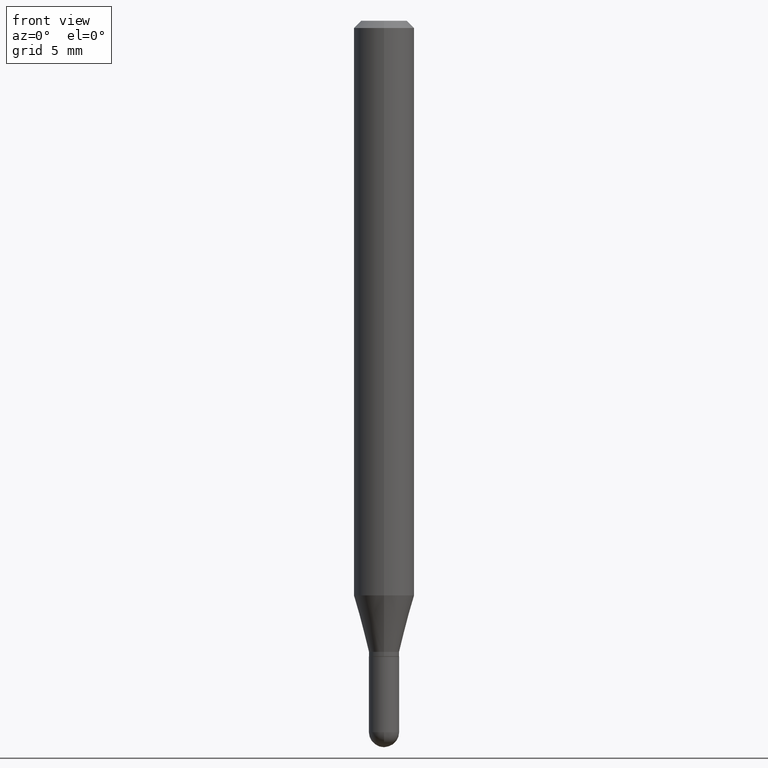
[diagram: clean part render]
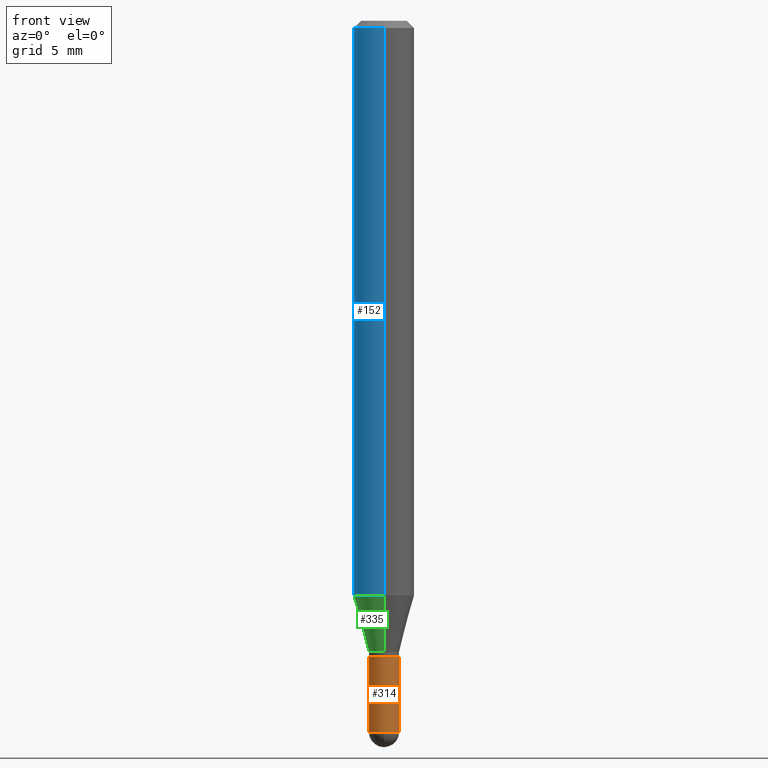
[diagram: same view with three faces highlighted in distinct colors, each labeled with its STEP entity id]
A machine part, front view with three faces highlighted in distinct colors.
Their STEP definitions:

[orange] entity #314 — the highlighted cylindrical surface (edge-blend (fillet) strip) has radius 0.7937 mm, axis along (-0, 0, 1).
#5 = EDGE_LOOP ( 'NONE', ( #219, #83, #27, #449, #45 ) ) ;
#15 = CARTESIAN_POINT ( 'NONE',  ( -2.220446049249960559E-16, -0.03125000000000523193, -1.468749999999999556 ) ) ;
#27 = ORIENTED_EDGE ( 'NONE', *, *, #450, .T. ) ;
#36 = CYLINDRICAL_SURFACE ( 'NONE', #216, 0.03124999999999956285 ) ;
#38 = CARTESIAN_POINT ( 'NONE',  ( -0.03124999999999956285, -4.634169502238430896E-15, -1.468749999999999556 ) ) ;
#44 = FACE_OUTER_BOUND ( 'NONE', #5, .T. ) ;
#45 = ORIENTED_EDGE ( 'NONE', *, *, #408, .F. ) ;
#55 = EDGE_CURVE ( 'NONE', #418, #89, #67, .T. ) ;
#58 = AXIS2_PLACEMENT_3D ( 'NONE', #118, #109, #267 ) ;
#67 = LINE ( 'NONE', #369, #302 ) ;
#73 = CIRCLE ( 'NONE', #432, 0.03124999999999956285 ) ;
#83 = ORIENTED_EDGE ( 'NONE', *, *, #263, .T. ) ;
#85 = CARTESIAN_POINT ( 'NONE',  ( -0.03124999999999956285, 2.220446049250282019E-16, -1.537167215704636512E-30 ) ) ;
#89 = VERTEX_POINT ( 'NONE', #500 ) ;
#109 = DIRECTION ( 'NONE',  ( -2.445468806185136597E-29, 3.491481338843145583E-15, 1.000000000000000000 ) ) ;
#118 = CARTESIAN_POINT ( 'NONE',  ( 3.591782309084418255E-29, -5.128113216425867498E-15, -1.468749999999999556 ) ) ;
#124 = CIRCLE ( 'NONE', #58, 0.03124999999999956285 ) ;
#129 = LINE ( 'NONE', #85, #151 ) ;
#151 = VECTOR ( 'NONE', #341, 39.37007874015748143 ) ;
#212 = DIRECTION ( 'NONE',  ( 1.000000000000000000, -6.982962677686267499E-15, 0.000000000000000000 ) ) ;
#216 = AXIS2_PLACEMENT_3D ( 'NONE', #265, #348, #506 ) ;
#219 = ORIENTED_EDGE ( 'NONE', *, *, #376, .F. ) ;
#222 = DIRECTION ( 'NONE',  ( -2.445468806185136597E-29, 3.491481338843145583E-15, 1.000000000000000000 ) ) ;
#227 = AXIS2_PLACEMENT_3D ( 'NONE', #304, #222, #379 ) ;
#243 = VERTEX_POINT ( 'NONE', #38 ) ;
#263 = EDGE_CURVE ( 'NONE', #243, #480, #124, .T. ) ;
#265 = CARTESIAN_POINT ( 'NONE',  ( 0.000000000000000000, 0.000000000000000000, 0.000000000000000000 ) ) ;
#267 = DIRECTION ( 'NONE',  ( 1.000000000000000000, -6.982962677686267499E-15, 0.000000000000000000 ) ) ;
#279 = DIRECTION ( 'NONE',  ( -2.445468806185136597E-29, 3.491481338843145583E-15, 1.000000000000000000 ) ) ;
#302 = VECTOR ( 'NONE', #461, 39.37007874015748143 ) ;
#304 = CARTESIAN_POINT ( 'NONE',  ( 3.210900542521084024E-29, -4.584314997901049810E-15, -1.312999999999999945 ) ) ;
#314 = ADVANCED_FACE ( 'NONE', ( #44 ), #36, .T. ) ;
#317 = CARTESIAN_POINT ( 'NONE',  ( 0.03124999999999956285, -5.074431690841150939E-15, -1.468749999999999556 ) ) ;
#341 = DIRECTION ( 'NONE',  ( -2.445468806185136877E-29, 3.491481338843145188E-15, 1.000000000000000000 ) ) ;
#345 = CIRCLE ( 'NONE', #227, 0.03124999999999956285 ) ;
#348 = DIRECTION ( 'NONE',  ( -2.445468806185136597E-29, 3.491481338843145583E-15, 1.000000000000000000 ) ) ;
#364 = CARTESIAN_POINT ( 'NONE',  ( -0.03124999999999956285, -4.634169502238430896E-15, -1.312999999999999945 ) ) ;
#369 = CARTESIAN_POINT ( 'NONE',  ( 0.03124999999999956285, -2.182175836776928025E-16, 1.523805242436208565E-30 ) ) ;
#376 = EDGE_CURVE ( 'NONE', #243, #495, #129, .T. ) ;
#379 = DIRECTION ( 'NONE',  ( 1.000000000000000000, -6.982962677686267499E-15, 0.000000000000000000 ) ) ;
#400 = CARTESIAN_POINT ( 'NONE',  ( 3.591782309084418255E-29, -5.128113216425867498E-15, -1.468749999999999556 ) ) ;
#408 = EDGE_CURVE ( 'NONE', #495, #89, #345, .T. ) ;
#418 = VERTEX_POINT ( 'NONE', #317 ) ;
#432 = AXIS2_PLACEMENT_3D ( 'NONE', #400, #279, #212 ) ;
#449 = ORIENTED_EDGE ( 'NONE', *, *, #55, .T. ) ;
#450 = EDGE_CURVE ( 'NONE', #480, #418, #73, .T. ) ;
#461 = DIRECTION ( 'NONE',  ( -2.445468806185136877E-29, 3.491481338843145188E-15, 1.000000000000000000 ) ) ;
#480 = VERTEX_POINT ( 'NONE', #15 ) ;
#495 = VERTEX_POINT ( 'NONE', #364 ) ;
#500 = CARTESIAN_POINT ( 'NONE',  ( 0.03124999999999956285, -4.802532581578742489E-15, -1.312999999999999945 ) ) ;
#506 = DIRECTION ( 'NONE',  ( 1.000000000000000000, -6.982962677686267499E-15, 4.876176775795935793E-29 ) ) ;

[blue] entity #152 — the highlighted cylindrical surface (edge-blend (fillet) strip) has radius 1.5875 mm, axis along (-0, 0, 1).
#6 = EDGE_CURVE ( 'NONE', #424, #481, #35, .T. ) ;
#8 = ORIENTED_EDGE ( 'NONE', *, *, #6, .T. ) ;
#14 = DIRECTION ( 'NONE',  ( -6.982962677686265922E-15, -1.000000000000000000, 4.370956789862821938E-15 ) ) ;
#17 = CARTESIAN_POINT ( 'NONE',  ( 4.440892098500914096E-16, 0.06249999999999582279, -1.186373412263470595 ) ) ;
#23 = CARTESIAN_POINT ( 'NONE',  ( 0.000000000000000000, 0.000000000000000000, 0.000000000000000000 ) ) ;
#31 = DIRECTION ( 'NONE',  ( -6.982962677686265922E-15, -1.000000000000000000, 3.487252007655688059E-15 ) ) ;
#35 = CIRCLE ( 'NONE', #161, 0.06249999999999999306 ) ;
#92 = CARTESIAN_POINT ( 'NONE',  ( -4.364351673553916201E-16, -0.06250000000000000000, 2.179532504784805037E-16 ) ) ;
#104 = AXIS2_PLACEMENT_3D ( 'NONE', #23, #172, #31 ) ;
#135 = ORIENTED_EDGE ( 'NONE', *, *, #350, .F. ) ;
#152 = ADVANCED_FACE ( 'NONE', ( #371 ), #255, .T. ) ;
#159 = CARTESIAN_POINT ( 'NONE',  ( -4.364351673553627281E-16, -0.06250000000000416334, -1.186373412263470373 ) ) ;
#161 = AXIS2_PLACEMENT_3D ( 'NONE', #402, #245, #14 ) ;
#166 = CARTESIAN_POINT ( 'NONE',  ( 3.672633198552774961E-31, -5.230878011483577990E-17, -0.01500000000000012955 ) ) ;
#172 = DIRECTION ( 'NONE',  ( -2.448422132368495575E-29, 3.487252007655688059E-15, 1.000000000000000000 ) ) ;
#202 = DIRECTION ( 'NONE',  ( -2.448422132368495295E-29, 3.487252007655688059E-15, 1.000000000000000000 ) ) ;
#206 = DIRECTION ( 'NONE',  ( -2.448422132368495575E-29, 3.487252007655688059E-15, 1.000000000000000000 ) ) ;
#242 = CIRCLE ( 'NONE', #446, 0.06250000000000001388 ) ;
#245 = DIRECTION ( 'NONE',  ( -2.448422132368495575E-29, 3.487252007655688059E-15, 1.000000000000000000 ) ) ;
#255 = CYLINDRICAL_SURFACE ( 'NONE', #104, 0.06250000000000000000 ) ;
#271 = CARTESIAN_POINT ( 'NONE',  ( 4.440892098500920012E-16, 0.06249999999999996531, -0.01500000000000034812 ) ) ;
#283 = EDGE_LOOP ( 'NONE', ( #135, #8, #313, #434 ) ) ;
#284 = LINE ( 'NONE', #322, #384 ) ;
#313 = ORIENTED_EDGE ( 'NONE', *, *, #463, .T. ) ;
#322 = CARTESIAN_POINT ( 'NONE',  ( 4.440892098500625669E-16, 0.06250000000000000000, -2.179532504784805037E-16 ) ) ;
#350 = EDGE_CURVE ( 'NONE', #424, #392, #284, .T. ) ;
#357 = CARTESIAN_POINT ( 'NONE',  ( -4.364351673553913736E-16, -0.06250000000000006939, -0.01499999999999991271 ) ) ;
#366 = DIRECTION ( 'NONE',  ( -2.448422132368495295E-29, 3.487252007655688059E-15, 1.000000000000000000 ) ) ;
#370 = EDGE_CURVE ( 'NONE', #392, #474, #242, .T. ) ;
#371 = FACE_OUTER_BOUND ( 'NONE', #283, .T. ) ;
#384 = VECTOR ( 'NONE', #366, 39.37007874015748143 ) ;
#392 = VERTEX_POINT ( 'NONE', #271 ) ;
#397 = LINE ( 'NONE', #92, #502 ) ;
#402 = CARTESIAN_POINT ( 'NONE',  ( 2.904742919839414695E-29, -4.137183063745116506E-15, -1.186373412263470595 ) ) ;
#424 = VERTEX_POINT ( 'NONE', #17 ) ;
#434 = ORIENTED_EDGE ( 'NONE', *, *, #370, .F. ) ;
#437 = DIRECTION ( 'NONE',  ( -6.982962677686265922E-15, -1.000000000000000000, 3.483106191921934765E-15 ) ) ;
#446 = AXIS2_PLACEMENT_3D ( 'NONE', #166, #206, #437 ) ;
#463 = EDGE_CURVE ( 'NONE', #481, #474, #397, .T. ) ;
#474 = VERTEX_POINT ( 'NONE', #357 ) ;
#481 = VERTEX_POINT ( 'NONE', #159 ) ;
#502 = VECTOR ( 'NONE', #202, 39.37007874015748143 ) ;

[green] entity #335 — the highlighted conical surface has half-angle 15 deg.
#6 = EDGE_CURVE ( 'NONE', #424, #481, #35, .T. ) ;
#14 = DIRECTION ( 'NONE',  ( -6.982962677686265922E-15, -1.000000000000000000, 4.370956789862821938E-15 ) ) ;
#17 = CARTESIAN_POINT ( 'NONE',  ( 4.440892098500914096E-16, 0.06249999999999582279, -1.186373412263470595 ) ) ;
#26 = VECTOR ( 'NONE', #444, 39.37007874015748143 ) ;
#35 = CIRCLE ( 'NONE', #161, 0.06249999999999999306 ) ;
#57 = VECTOR ( 'NONE', #451, 39.37007874015748143 ) ;
#62 = CARTESIAN_POINT ( 'NONE',  ( 2.220446049250581294E-16, 0.03124999999999474032, -1.302999999999999714 ) ) ;
#106 = CARTESIAN_POINT ( 'NONE',  ( 3.330669073875748681E-16, 0.03124999999999473685, -1.302999999999999714 ) ) ;
#120 = DIRECTION ( 'NONE',  ( -2.448422132368495575E-29, 3.487252007655688059E-15, 1.000000000000000000 ) ) ;
#144 = EDGE_CURVE ( 'NONE', #149, #424, #412, .T. ) ;
#149 = VERTEX_POINT ( 'NONE', #106 ) ;
#150 = DIRECTION ( 'NONE',  ( -2.448422132368495575E-29, 3.487252007655688059E-15, 1.000000000000000000 ) ) ;
#159 = CARTESIAN_POINT ( 'NONE',  ( -4.364351673553627281E-16, -0.06250000000000416334, -1.186373412263470373 ) ) ;
#161 = AXIS2_PLACEMENT_3D ( 'NONE', #402, #245, #14 ) ;
#162 = ORIENTED_EDGE ( 'NONE', *, *, #508, .T. ) ;
#174 = AXIS2_PLACEMENT_3D ( 'NONE', #510, #150, #484 ) ;
#190 = ORIENTED_EDGE ( 'NONE', *, *, #144, .F. ) ;
#207 = ORIENTED_EDGE ( 'NONE', *, *, #421, .T. ) ;
#232 = FACE_OUTER_BOUND ( 'NONE', #349, .T. ) ;
#237 = VERTEX_POINT ( 'NONE', #275 ) ;
#245 = DIRECTION ( 'NONE',  ( -2.448422132368495575E-29, 3.487252007655688059E-15, 1.000000000000000000 ) ) ;
#248 = LINE ( 'NONE', #251, #26 ) ;
#251 = CARTESIAN_POINT ( 'NONE',  ( -2.182175836776589308E-16, -0.03125000000000383027, -1.302999999999999714 ) ) ;
#270 = CIRCLE ( 'NONE', #333, 0.03124999999999928529 ) ;
#275 = CARTESIAN_POINT ( 'NONE',  ( -2.182175836776589308E-16, -0.03125000000000383027, -1.302999999999999714 ) ) ;
#326 = CARTESIAN_POINT ( 'NONE',  ( 3.190294038476148960E-29, -4.543889365975361704E-15, -1.302999999999999714 ) ) ;
#333 = AXIS2_PLACEMENT_3D ( 'NONE', #326, #120, #401 ) ;
#335 = ADVANCED_FACE ( 'NONE', ( #232 ), #462, .T. ) ;
#349 = EDGE_LOOP ( 'NONE', ( #190, #207, #162, #496 ) ) ;
#401 = DIRECTION ( 'NONE',  ( -6.982962677686265922E-15, -1.000000000000000000, 0.000000000000000000 ) ) ;
#402 = CARTESIAN_POINT ( 'NONE',  ( 2.904742919839414695E-29, -4.137183063745116506E-15, -1.186373412263470595 ) ) ;
#412 = LINE ( 'NONE', #62, #57 ) ;
#421 = EDGE_CURVE ( 'NONE', #149, #237, #270, .T. ) ;
#424 = VERTEX_POINT ( 'NONE', #17 ) ;
#444 = DIRECTION ( 'NONE',  ( -1.807323732225336450E-15, -0.2588190451025190741, 0.9659258262890687563 ) ) ;
#451 = DIRECTION ( 'NONE',  ( 1.839019923739606626E-15, 0.2588190451025258465, 0.9659258262890669799 ) ) ;
#462 = CONICAL_SURFACE ( 'NONE', #174, 0.03124999999999928529, 0.2617993877991511842 ) ;
#481 = VERTEX_POINT ( 'NONE', #159 ) ;
#484 = DIRECTION ( 'NONE',  ( -6.982962677686265922E-15, -1.000000000000000000, 0.000000000000000000 ) ) ;
#496 = ORIENTED_EDGE ( 'NONE', *, *, #6, .F. ) ;
#508 = EDGE_CURVE ( 'NONE', #237, #481, #248, .T. ) ;
#510 = CARTESIAN_POINT ( 'NONE',  ( 3.190294038476148960E-29, -4.543889365975361704E-15, -1.302999999999999714 ) ) ;